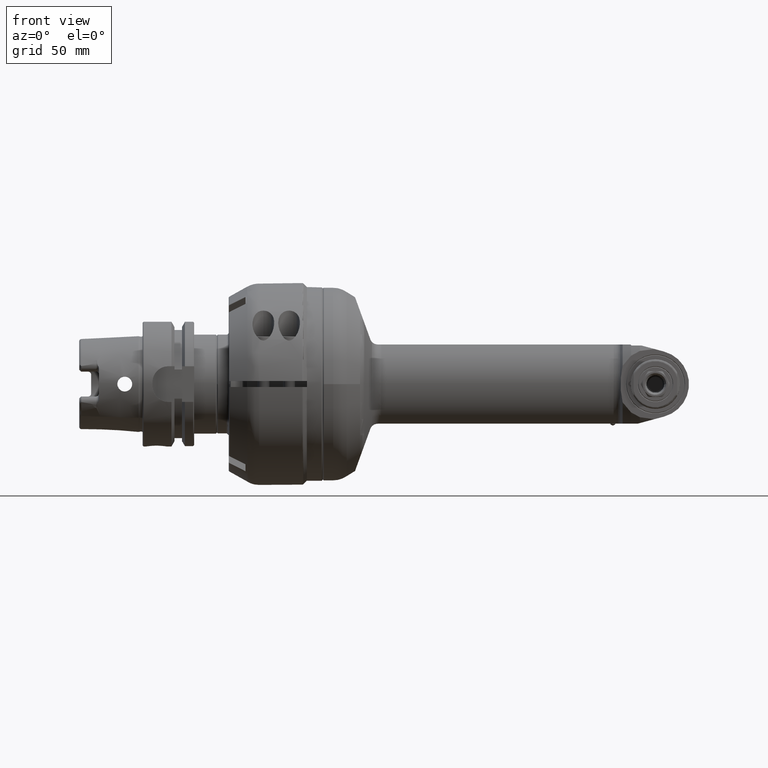
[diagram: clean part render]
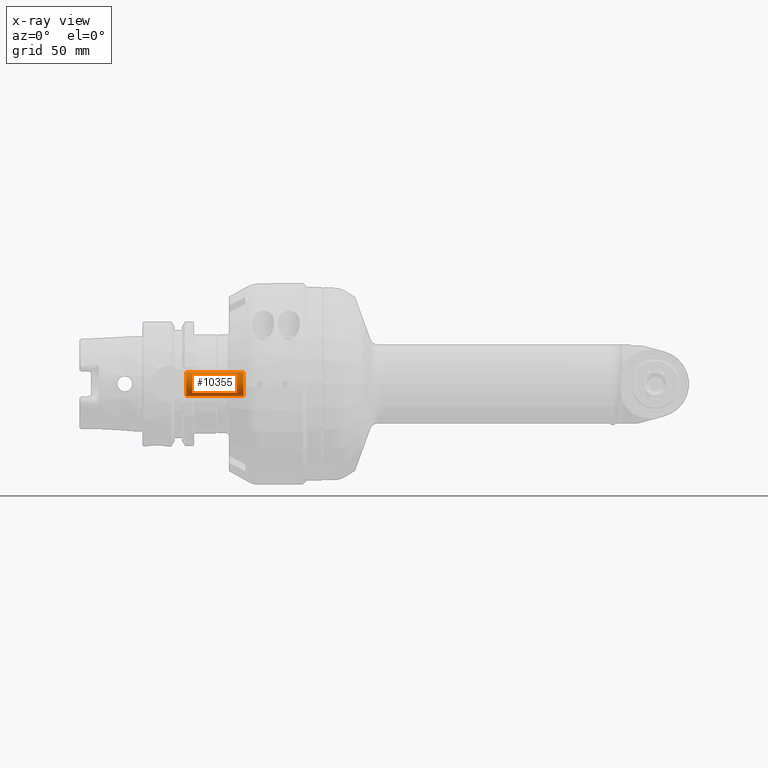
[diagram: x-ray — body ghosted, one internal face saturated and labeled with its STEP entity id]
A machine part, front view, then the same camera in x-ray: the body is ghosted and one INTERNAL B-rep face — a face not visible from any outside direction — is saturated and labeled: STEP entity #10355.
In plain terms, the highlighted cylindrical surface (bore or boss wall) has radius 6 mm, axis along (-1, 0, 0).
Its self-contained STEP definition (entity closure, byte-faithful):
#447=LINE('',#15796,#1143);
#1143=VECTOR('',#12383,6.);
#1832=CYLINDRICAL_SURFACE('',#11035,6.);
#2159=FACE_OUTER_BOUND('',#2803,.T.);
#2803=EDGE_LOOP('',(#6876,#6877,#6878,#6879));
#3528=CIRCLE('',#11034,6.);
#3529=CIRCLE('',#11036,6.);
#4168=VERTEX_POINT('',#15792);
#4169=VERTEX_POINT('',#15795);
#5228=EDGE_CURVE('',#4168,#4168,#3528,.T.);
#5229=EDGE_CURVE('',#4168,#4169,#447,.T.);
#5230=EDGE_CURVE('',#4169,#4169,#3529,.T.);
#6876=ORIENTED_EDGE('',*,*,#5228,.F.);
#6877=ORIENTED_EDGE('',*,*,#5229,.T.);
#6878=ORIENTED_EDGE('',*,*,#5230,.T.);
#6879=ORIENTED_EDGE('',*,*,#5229,.F.);
#10355=ADVANCED_FACE('',(#2159),#1832,.T.);
#11034=AXIS2_PLACEMENT_3D('',#15793,#12379,#12380);
#11035=AXIS2_PLACEMENT_3D('',#15794,#12381,#12382);
#11036=AXIS2_PLACEMENT_3D('',#15797,#12384,#12385);
#12379=DIRECTION('center_axis',(-1.,0.,0.));
#12380=DIRECTION('ref_axis',(0.,0.,-1.));
#12381=DIRECTION('center_axis',(-1.,0.,0.));
#12382=DIRECTION('ref_axis',(0.,0.,1.));
#12383=DIRECTION('',(1.,0.,0.));
#12384=DIRECTION('center_axis',(-1.,0.,0.));
#12385=DIRECTION('ref_axis',(0.,0.,-1.));
#15792=CARTESIAN_POINT('',(-237.,0.,-6.));
#15793=CARTESIAN_POINT('Origin',(-237.,0.,0.));
#15794=CARTESIAN_POINT('Origin',(-199.65,0.,0.));
#15795=CARTESIAN_POINT('',(-208.,0.,-6.));
#15796=CARTESIAN_POINT('',(-199.65,-7.34788079488412E-16,-6.));
#15797=CARTESIAN_POINT('Origin',(-208.,0.,0.));